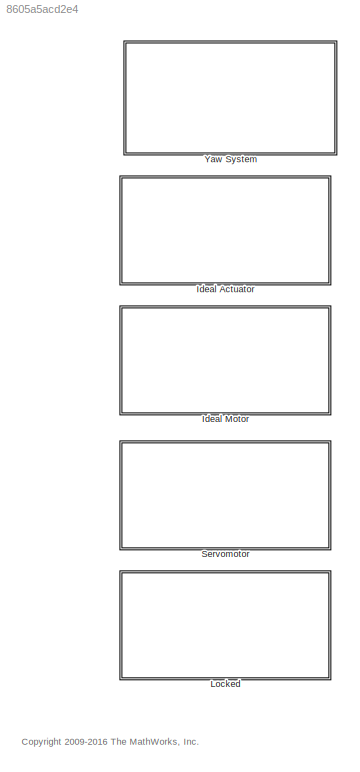
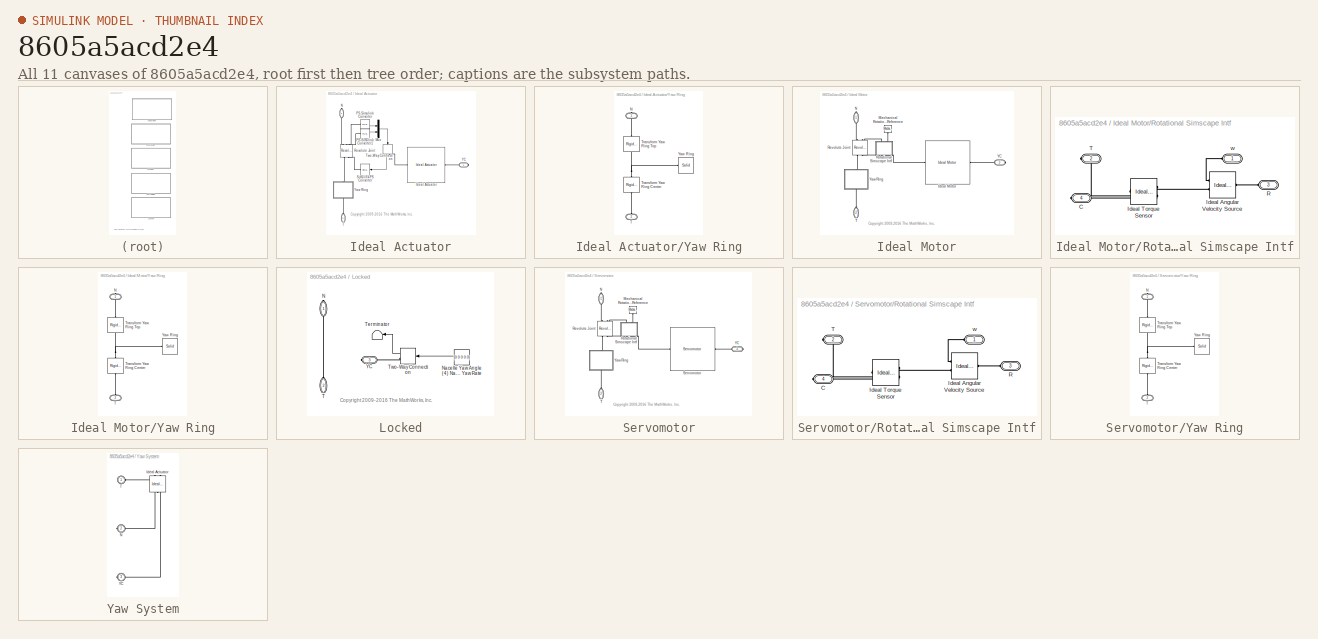
[diagram: thumbnail index - all 11 canvases of the model, root first then tree order]
MODEL slx_8605a5acd2e4
KIND library
CONFIG AbsTol = auto
CONFIG FixedStep = auto
CONFIG MaxStep = auto
CONFIG MinStep = auto
CONFIG RelTol = 1e-3
CONFIG SampleTimeConstraint = Unconstrained
CONFIG Solver = ode45
CONFIG SolverMode = Auto
CONFIG SolverName = ode45
CONFIG StartTime = 0.0
CONFIG StopTime = 10.0
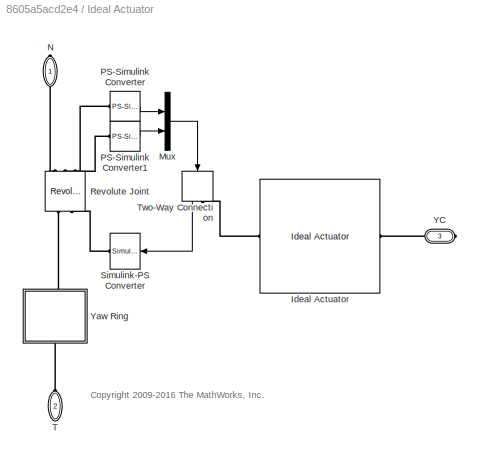
BLOCK [SubSystem] Ideal Actuator
  Ports = [0, 0, 0, 0, 0, 1, 2]
  RequestExecContextInheritance = off
  Variant = off
BLOCK [Reference] Ideal Actuator/Ideal Actuator  REF=Yaw_Actuation_Lib/Ideal Actuator
  Ports = [0, 0, 0, 0, 0, 1, 1]
  SourceBlock = Yaw_Actuation_Lib/Ideal Actuator
BLOCK [Mux] Ideal Actuator/Mux
  DisplayOption = bar
  Inputs = 2
  Ports = [2, 1]
BLOCK [PMIOPort] Ideal Actuator/N
  Port = 1
  Side = Right
BLOCK [Reference] Ideal Actuator/PS-Simulink Converter  REF=nesl_utility/PS-Simulink
Converter
  Ports = [0, 1, 0, 0, 0, 1]
  SourceBlock = nesl_utility/PS-Simulink\nConverter
  SourceType = PS-Simulink\nConverter
BLOCK [Reference] Ideal Actuator/PS-Simulink Converter1  REF=nesl_utility/PS-Simulink
Converter
  Ports = [0, 1, 0, 0, 0, 1]
  SourceBlock = nesl_utility/PS-Simulink\nConverter
  SourceType = PS-Simulink\nConverter
BLOCK [Reference] Ideal Actuator/Revolute Joint  REF=sm_lib/Joints/Revolute Joint
  Ports = [0, 0, 0, 0, 0, 2, 3]
  SourceBlock = sm_lib/Joints/Revolute Joint
  SourceType = Revolute Joint
BLOCK [Reference] Ideal Actuator/Simulink-PS Converter  REF=nesl_utility/Simulink-PS
Converter
  Ports = [1, 0, 0, 0, 0, 0, 1]
  SourceBlock = nesl_utility/Simulink-PS\nConverter
  SourceType = Simulink-PS\nConverter
BLOCK [PMIOPort] Ideal Actuator/T
  Port = 2
  Side = Left
BLOCK [TwoWayConnection] Ideal Actuator/Two-Way Connection
  Ports = [1, 1, 0, 0, 0, 0, 1]
BLOCK [PMIOPort] Ideal Actuator/YC
  Port = 3
  Side = Right
BLOCK [SubSystem] Ideal Actuator/Yaw Ring
  Ports = [0, 0, 0, 0, 0, 1, 1]
  RequestExecContextInheritance = off
  Variant = off
BLOCK [PMIOPort] Ideal Actuator/Yaw Ring/N
  Port = 1
  Side = Right
BLOCK [PMIOPort] Ideal Actuator/Yaw Ring/T
  Port = 2
  Side = Left
BLOCK [Reference] Ideal Actuator/Yaw Ring/Transform Yaw Ring Center  REF=sm_lib/Frames and
Transforms/Rigid
Transform
  Ports = [0, 0, 0, 0, 0, 1, 1]
  SourceBlock = sm_lib/Frames and\nTransforms/Rigid\nTransform
  SourceType = Rigid\nTransform
BLOCK [Reference] Ideal Actuator/Yaw Ring/Transform Yaw Ring Top  REF=sm_lib/Frames and
Transforms/Rigid
Transform
  Ports = [0, 0, 0, 0, 0, 1, 1]
  SourceBlock = sm_lib/Frames and\nTransforms/Rigid\nTransform
  SourceType = Rigid\nTransform
BLOCK [Reference] Ideal Actuator/Yaw Ring/Yaw Ring  REF=sm_lib/Body Elements/Solid
  Ports = [0, 0, 0, 0, 0, 0, 1]
  SourceBlock = sm_lib/Body Elements/Solid
  SourceType = Solid
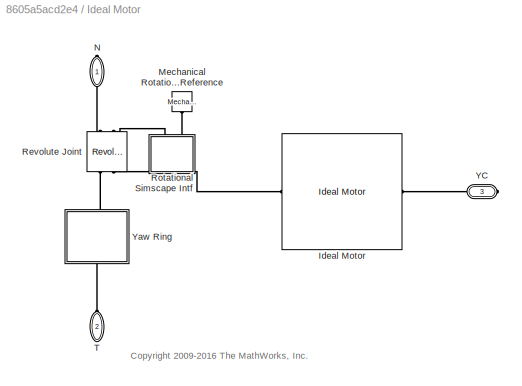
BLOCK [SubSystem] Ideal Motor
  Ports = [0, 0, 0, 0, 0, 1, 2]
  RequestExecContextInheritance = off
  Variant = off
BLOCK [Reference] Ideal Motor/Ideal Motor  REF=Yaw_Actuation_Lib/Ideal Motor
  Ports = [0, 0, 0, 0, 0, 1, 1]
  SourceBlock = Yaw_Actuation_Lib/Ideal Motor
BLOCK [Reference] Ideal Motor/Mechanical Rotational Reference  REF=fl_lib/Mechanical/Rotational Elements/Mechanical
Rotational Reference
  Ports = [0, 0, 0, 0, 0, 1]
  SourceBlock = fl_lib/Mechanical/Rotational Elements/Mechanical\nRotational Reference
  SourceType = Mechanical\nRotational Reference
BLOCK [PMIOPort] Ideal Motor/N
  Port = 1
  Side = Right
BLOCK [Reference] Ideal Motor/Revolute Joint  REF=sm_lib/Joints/Revolute Joint
  Ports = [0, 0, 0, 0, 0, 2, 2]
  SourceBlock = sm_lib/Joints/Revolute Joint
  SourceType = Revolute Joint
BLOCK [SubSystem] Ideal Motor/Rotational Simscape Intf
  Ports = [0, 0, 0, 0, 0, 2, 2]
  RequestExecContextInheritance = off
  Variant = off
BLOCK [PMIOPort] Ideal Motor/Rotational Simscape Intf/C
  Port = 4
  Side = Right
BLOCK [Reference] Ideal Motor/Rotational Simscape Intf/Ideal Angular Velocity Source  REF=fl_lib/Mechanical/Mechanical Sources/Ideal Angular
Velocity Source
  Ports = [0, 0, 0, 0, 0, 1, 2]
  SourceBlock = fl_lib/Mechanical/Mechanical Sources/Ideal Angular\nVelocity Source
  SourceType = Ideal Angular\nVelocity Source
BLOCK [Reference] Ideal Motor/Rotational Simscape Intf/Ideal Torque Sensor  REF=fl_lib/Mechanical/Mechanical Sensors/Ideal Torque Sensor
  Ports = [0, 0, 0, 0, 0, 1, 2]
  SourceBlock = fl_lib/Mechanical/Mechanical Sensors/Ideal Torque Sensor
  SourceType = Ideal Torque Sensor
BLOCK [PMIOPort] Ideal Motor/Rotational Simscape Intf/R
  Port = 3
  Side = Left
BLOCK [PMIOPort] Ideal Motor/Rotational Simscape Intf/T
  Port = 2
  Side = Right
BLOCK [PMIOPort] Ideal Motor/Rotational Simscape Intf/w
  Port = 1
  Side = Left
BLOCK [PMIOPort] Ideal Motor/T
  Port = 2
  Side = Left
BLOCK [PMIOPort] Ideal Motor/YC
  Port = 3
  Side = Right
BLOCK [SubSystem] Ideal Motor/Yaw Ring
  Ports = [0, 0, 0, 0, 0, 1, 1]
  RequestExecContextInheritance = off
  Variant = off
BLOCK [PMIOPort] Ideal Motor/Yaw Ring/N
  Port = 1
  Side = Right
BLOCK [PMIOPort] Ideal Motor/Yaw Ring/T
  Port = 2
  Side = Left
BLOCK [Reference] Ideal Motor/Yaw Ring/Transform Yaw Ring Center  REF=sm_lib/Frames and
Transforms/Rigid
Transform
  Ports = [0, 0, 0, 0, 0, 1, 1]
  SourceBlock = sm_lib/Frames and\nTransforms/Rigid\nTransform
  SourceType = Rigid\nTransform
BLOCK [Reference] Ideal Motor/Yaw Ring/Transform Yaw Ring Top  REF=sm_lib/Frames and
Transforms/Rigid
Transform
  Ports = [0, 0, 0, 0, 0, 1, 1]
  SourceBlock = sm_lib/Frames and\nTransforms/Rigid\nTransform
  SourceType = Rigid\nTransform
BLOCK [Reference] Ideal Motor/Yaw Ring/Yaw Ring  REF=sm_lib/Body Elements/Solid
  Ports = [0, 0, 0, 0, 0, 0, 1]
  SourceBlock = sm_lib/Body Elements/Solid
  SourceType = Solid
BLOCK [SubSystem] Locked
  Ports = [0, 0, 0, 0, 0, 1, 2]
  RequestExecContextInheritance = off
  Variant = off
BLOCK [PMIOPort] Locked/N
  Port = 1
  Side = Right
BLOCK [Constant] Locked/Nacelle Yaw Angle (4) Nacelle Yaw Rate
  Value = [0 0 0 0 0]
BLOCK [PMIOPort] Locked/T
  Port = 2
  Side = Left
BLOCK [Terminator] Locked/Terminator
BLOCK [TwoWayConnection] Locked/Two-Way Connection
  Ports = [1, 1, 0, 0, 0, 0, 1]
BLOCK [PMIOPort] Locked/YC
  Port = 3
  Side = Right
BLOCK [SubSystem] Servomotor
  Ports = [0, 0, 0, 0, 0, 1, 2]
  RequestExecContextInheritance = off
  Variant = off
BLOCK [Reference] Servomotor/Mechanical Rotational Reference  REF=fl_lib/Mechanical/Rotational Elements/Mechanical
Rotational Reference
  Ports = [0, 0, 0, 0, 0, 1]
  SourceBlock = fl_lib/Mechanical/Rotational Elements/Mechanical\nRotational Reference
  SourceType = Mechanical\nRotational Reference
BLOCK [PMIOPort] Servomotor/N
  Port = 1
  Side = Right
BLOCK [Reference] Servomotor/Revolute Joint  REF=sm_lib/Joints/Revolute Joint
  Ports = [0, 0, 0, 0, 0, 2, 2]
  SourceBlock = sm_lib/Joints/Revolute Joint
  SourceType = Revolute Joint
BLOCK [SubSystem] Servomotor/Rotational Simscape Intf
  Ports = [0, 0, 0, 0, 0, 2, 2]
  RequestExecContextInheritance = off
  Variant = off
BLOCK [PMIOPort] Servomotor/Rotational Simscape Intf/C
  Port = 4
  Side = Right
BLOCK [Reference] Servomotor/Rotational Simscape Intf/Ideal Angular Velocity Source  REF=fl_lib/Mechanical/Mechanical Sources/Ideal Angular
Velocity Source
  Ports = [0, 0, 0, 0, 0, 1, 2]
  SourceBlock = fl_lib/Mechanical/Mechanical Sources/Ideal Angular\nVelocity Source
  SourceType = Ideal Angular\nVelocity Source
BLOCK [Reference] Servomotor/Rotational Simscape Intf/Ideal Torque Sensor  REF=fl_lib/Mechanical/Mechanical Sensors/Ideal Torque Sensor
  Ports = [0, 0, 0, 0, 0, 1, 2]
  SourceBlock = fl_lib/Mechanical/Mechanical Sensors/Ideal Torque Sensor
  SourceType = Ideal Torque Sensor
BLOCK [PMIOPort] Servomotor/Rotational Simscape Intf/R
  Port = 3
  Side = Left
BLOCK [PMIOPort] Servomotor/Rotational Simscape Intf/T
  Port = 2
  Side = Right
BLOCK [PMIOPort] Servomotor/Rotational Simscape Intf/w
  Port = 1
  Side = Left
BLOCK [Reference] Servomotor/Servomotor  REF=Yaw_Actuation_Lib/Servomotor
  Ports = [0, 0, 0, 0, 0, 1, 1]
  SourceBlock = Yaw_Actuation_Lib/Servomotor
BLOCK [PMIOPort] Servomotor/T
  Port = 2
  Side = Left
BLOCK [PMIOPort] Servomotor/YC
  Port = 3
  Side = Right
BLOCK [SubSystem] Servomotor/Yaw Ring
  Ports = [0, 0, 0, 0, 0, 1, 1]
  RequestExecContextInheritance = off
  Variant = off
BLOCK [PMIOPort] Servomotor/Yaw Ring/N
  Port = 1
  Side = Right
BLOCK [PMIOPort] Servomotor/Yaw Ring/T
  Port = 2
  Side = Left
BLOCK [Reference] Servomotor/Yaw Ring/Transform Yaw Ring Center  REF=sm_lib/Frames and
Transforms/Rigid
Transform
  Ports = [0, 0, 0, 0, 0, 1, 1]
  SourceBlock = sm_lib/Frames and\nTransforms/Rigid\nTransform
  SourceType = Rigid\nTransform
BLOCK [Reference] Servomotor/Yaw Ring/Transform Yaw Ring Top  REF=sm_lib/Frames and
Transforms/Rigid
Transform
  Ports = [0, 0, 0, 0, 0, 1, 1]
  SourceBlock = sm_lib/Frames and\nTransforms/Rigid\nTransform
  SourceType = Rigid\nTransform
BLOCK [Reference] Servomotor/Yaw Ring/Yaw Ring  REF=sm_lib/Body Elements/Solid
  Ports = [0, 0, 0, 0, 0, 0, 1]
  SourceBlock = sm_lib/Body Elements/Solid
  SourceType = Solid
BLOCK [SubSystem] Yaw System
  BlockChoice = Ideal Actuator
  MemberBlocks = Ideal Actuator,Ideal Motor,Locked,Servomotor
  Ports = [0, 0, 0, 0, 0, 1, 2]
  RequestExecContextInheritance = off
  TemplateBlock = self
  Variant = off
BLOCK [Reference] Yaw System/Ideal Actuator  REF=Yaw_System_Lib/Ideal Actuator
  Ports = [0, 0, 0, 0, 0, 1, 2]
  SourceBlock = Yaw_System_Lib/Ideal Actuator
BLOCK [PMIOPort] Yaw System/N
  Port = 2
  Side = Right
BLOCK [PMIOPort] Yaw System/T
  Port = 1
  Side = Left
BLOCK [PMIOPort] Yaw System/YC
  Port = 3
  Side = Right
ANNOTATION (root): <copyright redacted>
ANNOTATION Ideal Actuator: <copyright redacted>
ANNOTATION Ideal Motor: <copyright redacted>
ANNOTATION Locked: <copyright redacted>
ANNOTATION Servomotor: <copyright redacted>
LINE Ideal Actuator/Mux:1 -> Ideal Actuator/Two-Way Connection:1
LINE Ideal Actuator/PS-Simulink Converter1:1 -> Ideal Actuator/Mux:2
LINE Ideal Actuator/PS-Simulink Converter:1 -> Ideal Actuator/Mux:1
LINE Ideal Actuator/Two-Way Connection:1 -> Ideal Actuator/Simulink-PS Converter:1
LINE Locked/Nacelle Yaw Angle (4) Nacelle Yaw Rate:1 -> Locked/Two-Way Connection:1
LINE Locked/Two-Way Connection:1 -> Locked/Terminator:1
PLINE Ideal Actuator/Ideal Actuator:LConn1 -- Ideal Actuator/Two-Way Connection:RConn1
PLINE Ideal Actuator/Ideal Actuator:RConn1 -- Ideal Actuator/YC:RConn1
PLINE Ideal Actuator/N:RConn1 -- Ideal Actuator/Revolute Joint:RConn1
PLINE Ideal Actuator/PS-Simulink Converter1:LConn1 -- Ideal Actuator/Revolute Joint:RConn3
PLINE Ideal Actuator/PS-Simulink Converter:LConn1 -- Ideal Actuator/Revolute Joint:RConn2
PLINE Ideal Actuator/Revolute Joint:LConn1 -- Ideal Actuator/Yaw Ring:RConn1
PLINE Ideal Actuator/Revolute Joint:LConn2 -- Ideal Actuator/Simulink-PS Converter:RConn1
PLINE Ideal Actuator/T:RConn1 -- Ideal Actuator/Yaw Ring:LConn1
PLINE Ideal Actuator/Yaw Ring/N:RConn1 -- Ideal Actuator/Yaw Ring/Transform Yaw Ring Top:RConn1
PLINE Ideal Actuator/Yaw Ring/T:RConn1 -- Ideal Actuator/Yaw Ring/Transform Yaw Ring Center:LConn1
PNET net1: Ideal Actuator/Yaw Ring/Transform Yaw Ring Center:RConn1 -- Ideal Actuator/Yaw Ring/Transform Yaw Ring Top:LConn1 -- Ideal Actuator/Yaw Ring/Yaw Ring:RConn1
PLINE Ideal Motor/Ideal Motor:LConn1 -- Ideal Motor/Rotational Simscape Intf:RConn2
PLINE Ideal Motor/Ideal Motor:RConn1 -- Ideal Motor/YC:RConn1
PLINE Ideal Motor/Mechanical Rotational Reference:LConn1 -- Ideal Motor/Rotational Simscape Intf:LConn2
PLINE Ideal Motor/N:RConn1 -- Ideal Motor/Revolute Joint:RConn1
PLINE Ideal Motor/Revolute Joint:LConn1 -- Ideal Motor/Yaw Ring:RConn1
PLINE Ideal Motor/Revolute Joint:LConn2 -- Ideal Motor/Rotational Simscape Intf:RConn1
PLINE Ideal Motor/Revolute Joint:RConn2 -- Ideal Motor/Rotational Simscape Intf:LConn1
PLINE Ideal Motor/Rotational Simscape Intf/C:RConn1 -- Ideal Motor/Rotational Simscape Intf/Ideal Torque Sensor:RConn1
PLINE Ideal Motor/Rotational Simscape Intf/Ideal Angular Velocity Source:LConn1 -- Ideal Motor/Rotational Simscape Intf/R:RConn1
PLINE Ideal Motor/Rotational Simscape Intf/Ideal Angular Velocity Source:RConn1 -- Ideal Motor/Rotational Simscape Intf/w:RConn1
PLINE Ideal Motor/Rotational Simscape Intf/Ideal Angular Velocity Source:RConn2 -- Ideal Motor/Rotational Simscape Intf/Ideal Torque Sensor:LConn1
PLINE Ideal Motor/Rotational Simscape Intf/Ideal Torque Sensor:RConn2 -- Ideal Motor/Rotational Simscape Intf/T:RConn1
PLINE Ideal Motor/T:RConn1 -- Ideal Motor/Yaw Ring:LConn1
PLINE Ideal Motor/Yaw Ring/N:RConn1 -- Ideal Motor/Yaw Ring/Transform Yaw Ring Top:RConn1
PLINE Ideal Motor/Yaw Ring/T:RConn1 -- Ideal Motor/Yaw Ring/Transform Yaw Ring Center:LConn1
PNET net2: Ideal Motor/Yaw Ring/Transform Yaw Ring Center:RConn1 -- Ideal Motor/Yaw Ring/Transform Yaw Ring Top:LConn1 -- Ideal Motor/Yaw Ring/Yaw Ring:RConn1
PLINE Locked/N:RConn1 -- Locked/T:RConn1
PLINE Locked/Two-Way Connection:RConn1 -- Locked/YC:RConn1
PLINE Servomotor/Mechanical Rotational Reference:LConn1 -- Servomotor/Rotational Simscape Intf:LConn2
PLINE Servomotor/N:RConn1 -- Servomotor/Revolute Joint:RConn1
PLINE Servomotor/Revolute Joint:LConn1 -- Servomotor/Yaw Ring:RConn1
PLINE Servomotor/Revolute Joint:LConn2 -- Servomotor/Rotational Simscape Intf:RConn1
PLINE Servomotor/Revolute Joint:RConn2 -- Servomotor/Rotational Simscape Intf:LConn1
PLINE Servomotor/Rotational Simscape Intf/C:RConn1 -- Servomotor/Rotational Simscape Intf/Ideal Torque Sensor:RConn1
PLINE Servomotor/Rotational Simscape Intf/Ideal Angular Velocity Source:LConn1 -- Servomotor/Rotational Simscape Intf/R:RConn1
PLINE Servomotor/Rotational Simscape Intf/Ideal Angular Velocity Source:RConn1 -- Servomotor/Rotational Simscape Intf/w:RConn1
PLINE Servomotor/Rotational Simscape Intf/Ideal Angular Velocity Source:RConn2 -- Servomotor/Rotational Simscape Intf/Ideal Torque Sensor:LConn1
PLINE Servomotor/Rotational Simscape Intf/Ideal Torque Sensor:RConn2 -- Servomotor/Rotational Simscape Intf/T:RConn1
PLINE Servomotor/Rotational Simscape Intf:RConn2 -- Servomotor/Servomotor:LConn1
PLINE Servomotor/Servomotor:RConn1 -- Servomotor/YC:RConn1
PLINE Servomotor/T:RConn1 -- Servomotor/Yaw Ring:LConn1
PLINE Servomotor/Yaw Ring/N:RConn1 -- Servomotor/Yaw Ring/Transform Yaw Ring Top:RConn1
PLINE Servomotor/Yaw Ring/T:RConn1 -- Servomotor/Yaw Ring/Transform Yaw Ring Center:LConn1
PNET net3: Servomotor/Yaw Ring/Transform Yaw Ring Center:RConn1 -- Servomotor/Yaw Ring/Transform Yaw Ring Top:LConn1 -- Servomotor/Yaw Ring/Yaw Ring:RConn1
PLINE Yaw System/Ideal Actuator:LConn1 -- Yaw System/T:RConn1
PLINE Yaw System/Ideal Actuator:RConn1 -- Yaw System/N:RConn1
PLINE Yaw System/Ideal Actuator:RConn2 -- Yaw System/YC:RConn1
note: PNET lines group multi-terminal physical nets as a canonical sorted terminal list (undirected conserving connections); 2-terminal nets keep the pairwise PLINE form
